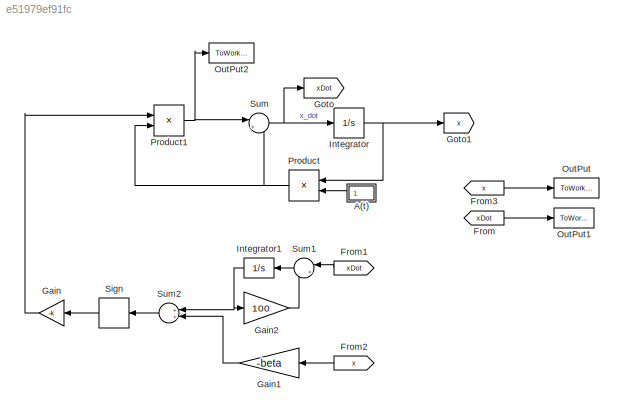
MODEL slx_e51979ef91fc
KIND model
CONFIG AbsTol = auto
CONFIG EnableMultiTasking = off
CONFIG FixedStep = 1e-3
CONFIG MaxStep = auto
CONFIG MinStep = auto
CONFIG RelTol = 1e-3
CONFIG SampleTimeConstraint = Unconstrained
CONFIG Solver = FixedStepAuto
CONFIG SolverName = FixedStepAuto
CONFIG StartTime = 0.0
CONFIG StopTime = 20
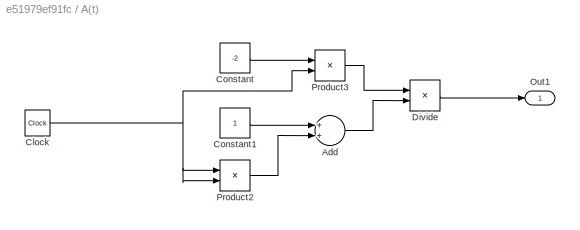
BLOCK [SubSystem] A(t)
  Ports = [0, 1]
  RequestExecContextInheritance = off
BLOCK [Sum] A(t)/Add
  InputSameDT = off
  OutDataTypeStr = Inherit: Inherit via internal rule
  Ports = [2, 1]
  SaturateOnIntegerOverflow = off
BLOCK [Clock] A(t)/Clock
BLOCK [Constant] A(t)/Constant
  Value = -2
BLOCK [Constant] A(t)/Constant1
BLOCK [Product] A(t)/Divide
  InputSameDT = off
  Inputs = */
  OutDataTypeStr = Inherit: Inherit via internal rule
  Ports = [2, 1]
  RndMeth = Floor
  SaturateOnIntegerOverflow = off
BLOCK [Outport] A(t)/Out1
  IconDisplay = Port number
BLOCK [Product] A(t)/Product2
  InputSameDT = off
  OutDataTypeStr = Inherit: Inherit via internal rule
  Ports = [2, 1]
  RndMeth = Floor
  SaturateOnIntegerOverflow = off
BLOCK [Product] A(t)/Product3
  InputSameDT = off
  OutDataTypeStr = Inherit: Inherit via internal rule
  Ports = [2, 1]
  RndMeth = Floor
  SaturateOnIntegerOverflow = off
BLOCK [From] From
  GotoTag = xDot
BLOCK [From] From1
  GotoTag = xDot
BLOCK [From] From2
  GotoTag = x
BLOCK [From] From3
  GotoTag = x
BLOCK [Gain] Gain
  Gain = -k
  OutDataTypeStr = Inherit: Inherit via internal rule
  ParamDataTypeStr = Inherit: Inherit via internal rule
  SaturateOnIntegerOverflow = off
BLOCK [Gain] Gain1
  Gain = -beta
  OutDataTypeStr = Inherit: Inherit via internal rule
  ParamDataTypeStr = Inherit: Inherit via internal rule
  SaturateOnIntegerOverflow = off
BLOCK [Gain] Gain2
  Gain = 100
  OutDataTypeStr = Inherit: Inherit via internal rule
  ParamDataTypeStr = Inherit: Inherit via internal rule
  SaturateOnIntegerOverflow = off
BLOCK [Goto] Goto
  GotoTag = xDot
BLOCK [Goto] Goto1
  GotoTag = x
BLOCK [Integrator] Integrator
  InitialCondition = x_0
  Ports = [1, 1]
BLOCK [Integrator] Integrator1
  InitialCondition = x_0
  Ports = [1, 1]
BLOCK [ToWorkspace] OutPut
  FixptAsFi = on
  MaxDataPoints = inf
  Ports = [1]
  SampleTime = -1
  SaveFormat = Structure With Time
  VariableName = x_t
BLOCK [ToWorkspace] OutPut1
  FixptAsFi = on
  MaxDataPoints = inf
  Ports = [1]
  SampleTime = -1
  SaveFormat = Structure With Time
  VariableName = x_dot_t
BLOCK [ToWorkspace] OutPut2
  FixptAsFi = on
  MaxDataPoints = inf
  Ports = [1]
  SampleTime = -1
  SaveFormat = Structure With Time
  VariableName = u_t
BLOCK [Product] Product
  InputSameDT = off
  OutDataTypeStr = Inherit: Inherit via internal rule
  Ports = [2, 1]
  RndMeth = Floor
  SaturateOnIntegerOverflow = off
BLOCK [Product] Product1
  InputSameDT = off
  OutDataTypeStr = Inherit: Inherit via internal rule
  Ports = [2, 1]
  RndMeth = Floor
  SaturateOnIntegerOverflow = off
BLOCK [Signum] Sign
BLOCK [Sum] Sum
  IconShape = round
  InputSameDT = off
  Inputs = |++
  OutDataTypeStr = Inherit: Inherit via internal rule
  Ports = [2, 1]
  SaturateOnIntegerOverflow = off
BLOCK [Sum] Sum1
  IconShape = round
  InputSameDT = off
  Inputs = |+-
  OutDataTypeStr = Inherit: Inherit via internal rule
  Ports = [2, 1]
  SaturateOnIntegerOverflow = off
BLOCK [Sum] Sum2
  InputSameDT = off
  OutDataTypeStr = Inherit: Inherit via internal rule
  Ports = [2, 1]
  SaturateOnIntegerOverflow = off
LINE A(t)/Add:1 -> A(t)/Divide:2
NET A(t)/Clock:1 -> A(t)/Product2:1, A(t)/Product2:2, A(t)/Product3:2
LINE A(t)/Constant1:1 -> A(t)/Add:1
LINE A(t)/Constant:1 -> A(t)/Product3:1
LINE A(t)/Divide:1 -> A(t)/Out1:1
LINE A(t)/Product2:1 -> A(t)/Add:2
LINE A(t)/Product3:1 -> A(t)/Divide:1
LINE A(t):1 -> Product:2
LINE From1:1 -> Sum1:1
LINE From2:1 -> Gain1:1
LINE From3:1 -> OutPut:1
LINE From:1 -> OutPut1:1
LINE Gain1:1 -> Sum2:2
LINE Gain2:1 -> Sum1:2
LINE Gain:1 -> Product1:1
NET Integrator1:1 -> Gain2:1, Sum2:1
NET Integrator:1 -> Goto1:1, Product:1
NET Product1:1 -> OutPut2:1, Sum:1
NET Product:1 -> Product1:2, Sum:2
LINE Sign:1 -> Gain:1
LINE Sum1:1 -> Integrator1:1
LINE Sum2:1 -> Sign:1
NET Sum:1 -> Goto:1, Integrator:1
note: NET lines group one-source signal fan-out (src -> all destinations, sorted); 1:1 wires keep LINE
